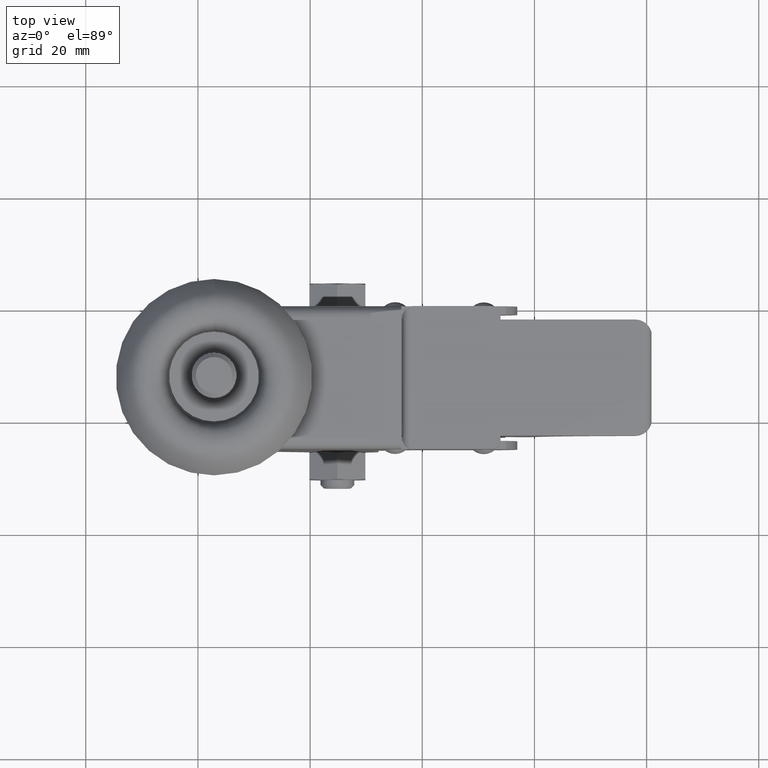
[diagram: clean part render]
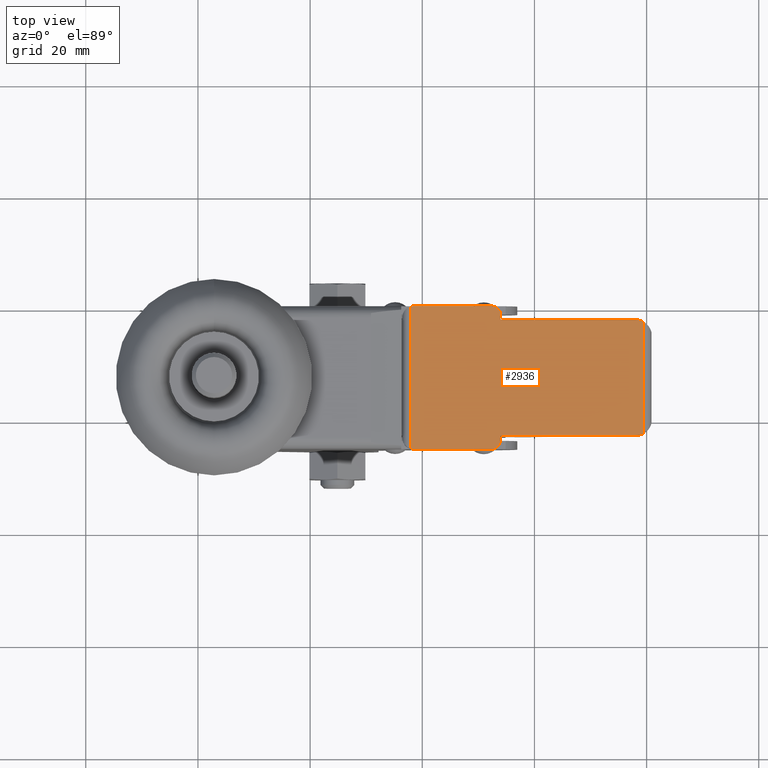
[diagram: same view with one face highlighted and labeled with its STEP entity id]
A machine part, top view. The second image highlights one B-rep face of the part: STEP entity #2936.
In plain terms, the highlighted planar face has unit normal (0, 0, -1).
Its self-contained STEP definition (entity closure, byte-faithful):
#161=LINE('',#4921,#322);
#162=LINE('',#4925,#323);
#163=LINE('',#4927,#324);
#164=LINE('',#4931,#325);
#165=LINE('',#4935,#326);
#166=LINE('',#4937,#327);
#167=LINE('',#4941,#328);
#168=LINE('',#4945,#329);
#322=VECTOR('',#3913,1000.);
#323=VECTOR('',#3916,1000.);
#324=VECTOR('',#3917,1000.);
#325=VECTOR('',#3920,1000.);
#326=VECTOR('',#3923,1000.);
#327=VECTOR('',#3924,1000.);
#328=VECTOR('',#3927,1000.);
#329=VECTOR('',#3930,1000.);
#571=PLANE('',#3391);
#670=FACE_OUTER_BOUND('',#868,.T.);
#868=EDGE_LOOP('',(#2163,#2164,#2165,#2166,#2167,#2168,#2169,#2170,#2171,
#2172,#2173,#2174,#2175,#2176));
#1081=CIRCLE('',#3392,1.5);
#1082=CIRCLE('',#3393,2.99999999999999);
#1083=CIRCLE('',#3394,3.);
#1084=CIRCLE('',#3395,1.5);
#1085=CIRCLE('',#3396,2.);
#1086=CIRCLE('',#3397,2.);
#1337=VERTEX_POINT('',#4919);
#1338=VERTEX_POINT('',#4920);
#1339=VERTEX_POINT('',#4922);
#1340=VERTEX_POINT('',#4924);
#1341=VERTEX_POINT('',#4926);
#1342=VERTEX_POINT('',#4928);
#1343=VERTEX_POINT('',#4930);
#1344=VERTEX_POINT('',#4932);
#1345=VERTEX_POINT('',#4934);
#1346=VERTEX_POINT('',#4936);
#1347=VERTEX_POINT('',#4938);
#1348=VERTEX_POINT('',#4940);
#1349=VERTEX_POINT('',#4942);
#1350=VERTEX_POINT('',#4944);
#1645=EDGE_CURVE('',#1337,#1338,#161,.T.);
#1646=EDGE_CURVE('',#1338,#1339,#1081,.T.);
#1647=EDGE_CURVE('',#1339,#1340,#162,.T.);
#1648=EDGE_CURVE('',#1340,#1341,#163,.T.);
#1649=EDGE_CURVE('',#1341,#1342,#1082,.F.);
#1650=EDGE_CURVE('',#1343,#1342,#164,.T.);
#1651=EDGE_CURVE('',#1343,#1344,#1083,.F.);
#1652=EDGE_CURVE('',#1345,#1344,#165,.T.);
#1653=EDGE_CURVE('',#1345,#1346,#166,.T.);
#1654=EDGE_CURVE('',#1346,#1347,#1084,.T.);
#1655=EDGE_CURVE('',#1347,#1348,#167,.T.);
#1656=EDGE_CURVE('',#1348,#1349,#1085,.T.);
#1657=EDGE_CURVE('',#1349,#1350,#168,.T.);
#1658=EDGE_CURVE('',#1350,#1337,#1086,.T.);
#2163=ORIENTED_EDGE('',*,*,#1645,.T.);
#2164=ORIENTED_EDGE('',*,*,#1646,.T.);
#2165=ORIENTED_EDGE('',*,*,#1647,.T.);
#2166=ORIENTED_EDGE('',*,*,#1648,.T.);
#2167=ORIENTED_EDGE('',*,*,#1649,.T.);
#2168=ORIENTED_EDGE('',*,*,#1650,.F.);
#2169=ORIENTED_EDGE('',*,*,#1651,.T.);
#2170=ORIENTED_EDGE('',*,*,#1652,.F.);
#2171=ORIENTED_EDGE('',*,*,#1653,.T.);
#2172=ORIENTED_EDGE('',*,*,#1654,.T.);
#2173=ORIENTED_EDGE('',*,*,#1655,.T.);
#2174=ORIENTED_EDGE('',*,*,#1656,.T.);
#2175=ORIENTED_EDGE('',*,*,#1657,.T.);
#2176=ORIENTED_EDGE('',*,*,#1658,.T.);
#2936=ADVANCED_FACE('',(#670),#571,.F.);
#3391=AXIS2_PLACEMENT_3D('',#4918,#3911,#3912);
#3392=AXIS2_PLACEMENT_3D('',#4923,#3914,#3915);
#3393=AXIS2_PLACEMENT_3D('',#4929,#3918,#3919);
#3394=AXIS2_PLACEMENT_3D('',#4933,#3921,#3922);
#3395=AXIS2_PLACEMENT_3D('',#4939,#3925,#3926);
#3396=AXIS2_PLACEMENT_3D('',#4943,#3928,#3929);
#3397=AXIS2_PLACEMENT_3D('',#4946,#3931,#3932);
#3911=DIRECTION('center_axis',(0.,-1.,0.));
#3912=DIRECTION('ref_axis',(0.,0.,-1.));
#3913=DIRECTION('',(-1.,0.,0.));
#3914=DIRECTION('center_axis',(0.,1.,0.));
#3915=DIRECTION('ref_axis',(1.,0.,0.));
#3916=DIRECTION('',(0.,0.,1.));
#3917=DIRECTION('',(-1.,0.,0.));
#3918=DIRECTION('center_axis',(0.,-1.,0.));
#3919=DIRECTION('ref_axis',(0.,0.,-1.));
#3920=DIRECTION('',(0.,0.,-1.));
#3921=DIRECTION('center_axis',(0.,-1.,0.));
#3922=DIRECTION('ref_axis',(0.,0.,-1.));
#3923=DIRECTION('',(-1.,0.,0.));
#3924=DIRECTION('',(0.,0.,1.));
#3925=DIRECTION('center_axis',(0.,1.,0.));
#3926=DIRECTION('ref_axis',(1.,0.,0.));
#3927=DIRECTION('',(1.,0.,0.));
#3928=DIRECTION('center_axis',(0.,1.,0.));
#3929=DIRECTION('ref_axis',(1.,0.,0.));
#3930=DIRECTION('',(0.,0.,-1.));
#3931=DIRECTION('center_axis',(0.,1.,0.));
#3932=DIRECTION('ref_axis',(1.,0.,0.));
#4918=CARTESIAN_POINT('Origin',(14.52,7.825,10.35));
#4919=CARTESIAN_POINT('',(12.52,7.825,-12.75));
#4920=CARTESIAN_POINT('',(-1.48,7.825,-12.75));
#4921=CARTESIAN_POINT('',(12.52,7.825,-12.75));
#4922=CARTESIAN_POINT('',(-2.98,7.825,-11.25));
#4923=CARTESIAN_POINT('Origin',(-1.48,7.825,-11.25));
#4924=CARTESIAN_POINT('',(-2.98,7.825,-10.35));
#4925=CARTESIAN_POINT('',(-2.98,7.825,-11.25));
#4926=CARTESIAN_POINT('',(-27.,7.825,-10.35));
#4927=CARTESIAN_POINT('',(14.52,7.825,-10.35));
#4928=CARTESIAN_POINT('',(-28.4,7.825,-10.0032998322843));
#4929=CARTESIAN_POINT('Origin',(-27.,7.825,-7.35));
#4930=CARTESIAN_POINT('',(-28.4,7.825,10.0032998322843));
#4931=CARTESIAN_POINT('',(-28.4,7.825,10.35));
#4932=CARTESIAN_POINT('',(-27.,7.825,10.35));
#4933=CARTESIAN_POINT('Origin',(-27.,7.825,7.35));
#4934=CARTESIAN_POINT('',(-2.98,7.825,10.35));
#4935=CARTESIAN_POINT('',(14.52,7.825,10.35));
#4936=CARTESIAN_POINT('',(-2.98,7.825,11.25));
#4937=CARTESIAN_POINT('',(-2.98,7.825,-11.25));
#4938=CARTESIAN_POINT('',(-1.48,7.825,12.75));
#4939=CARTESIAN_POINT('Origin',(-1.48,7.825,11.25));
#4940=CARTESIAN_POINT('',(12.52,7.825,12.75));
#4941=CARTESIAN_POINT('',(-1.48,7.825,12.75));
#4942=CARTESIAN_POINT('',(13.0483003023714,7.825,12.6789631387132));
#4943=CARTESIAN_POINT('Origin',(12.52,7.825,10.75));
#4944=CARTESIAN_POINT('',(13.0483003023714,7.825,-12.6789631387132));
#4945=CARTESIAN_POINT('',(13.0483003023714,7.825,20.));
#4946=CARTESIAN_POINT('Origin',(12.52,7.825,-10.75));